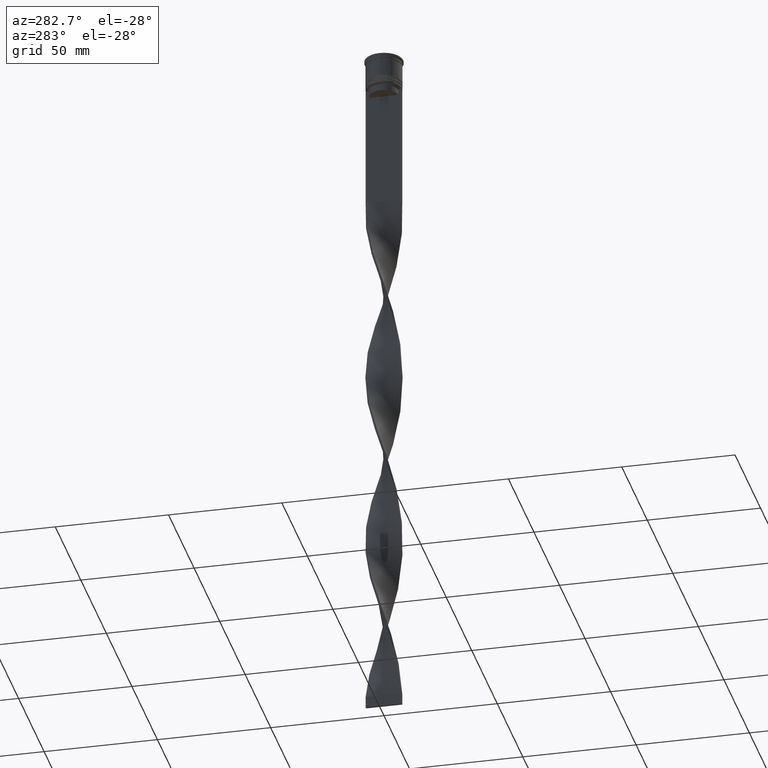
[diagram: clean part render]
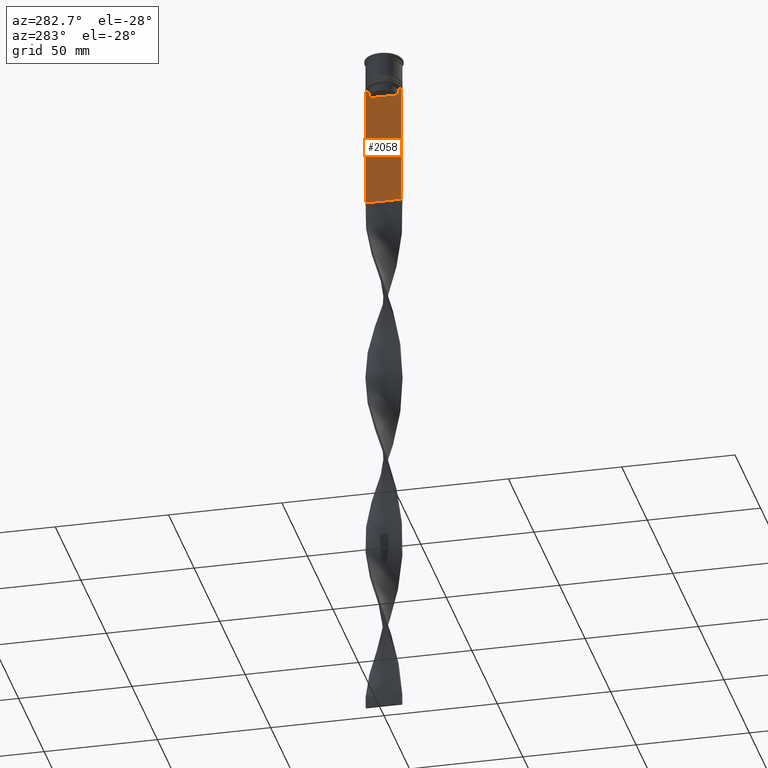
[diagram: same view with one face highlighted and labeled with its STEP entity id]
A machine part, auxiliary view. The second image highlights one B-rep face of the part: STEP entity #2058.
In plain terms, the highlighted planar face has unit normal (-1, 0, 0).
Its self-contained STEP definition (entity closure, byte-faithful):
#5 = VERTEX_POINT ( 'NONE', #3018 ) ;
#36 = VECTOR ( 'NONE', #982, 1000.000000000000000 ) ;
#104 = VECTOR ( 'NONE', #3948, 1000.000000000000000 ) ;
#203 = CARTESIAN_POINT ( 'NONE',  ( -0.4999999999999998890, -6.714736947305992132, -14.16668390685738999 ) ) ;
#284 = CARTESIAN_POINT ( 'NONE',  ( -0.4999999999999998890, 6.380438856379708312, 0.000000000000000000 ) ) ;
#470 = CARTESIAN_POINT ( 'NONE',  ( -0.4999999999999998890, -8.000000000000003553, 2.031219541881394530 ) ) ;
#481 = VERTEX_POINT ( 'NONE', #1497 ) ;
#530 = EDGE_CURVE ( 'NONE', #2687, #3258, #1315, .T. ) ;
#584 = EDGE_CURVE ( 'NONE', #3815, #2258, #1006, .T. ) ;
#670 = DIRECTION ( 'NONE',  ( 0.000000000000000000, 0.000000000000000000, -1.000000000000000000 ) ) ;
#787 = EDGE_CURVE ( 'NONE', #2905, #1333, #1852, .T. ) ;
#788 = FACE_OUTER_BOUND ( 'NONE', #1103, .T. ) ;
#791 = B_SPLINE_CURVE_WITH_KNOTS ( 'NONE', 3,
 ( #913, #2144, #203, #2166 ),
 .UNSPECIFIED., .F., .F.,
 ( 4, 4 ),
 ( 0.02996184199614749730, 0.03067452609193703841 ),
 .UNSPECIFIED. ) ;
#821 = CARTESIAN_POINT ( 'NONE',  ( -0.4999999999999998890, -6.881860213634098500, -14.00000000000000178 ) ) ;
#829 = DIRECTION ( 'NONE',  ( 0.000000000000000000, -1.000000000000000000, 0.000000000000000000 ) ) ;
#842 = CARTESIAN_POINT ( 'NONE',  ( -0.4999999999999998890, -6.380438856379708312, -14.50000000000000000 ) ) ;
#913 = CARTESIAN_POINT ( 'NONE',  ( -0.4999999999999998890, -6.380438856379708312, -14.50000000000000000 ) ) ;
#953 = VECTOR ( 'NONE', #670, 1000.000000000000000 ) ;
#956 = ORIENTED_EDGE ( 'NONE', *, *, #3692, .F. ) ;
#982 = DIRECTION ( 'NONE',  ( 0.000000000000000000, -1.000000000000000000, 0.000000000000000000 ) ) ;
#1006 = LINE ( 'NONE', #4086, #953 ) ;
#1042 = VECTOR ( 'NONE', #1313, 1000.000000000000000 ) ;
#1064 = LINE ( 'NONE', #3898, #1042 ) ;
#1068 = ORIENTED_EDGE ( 'NONE', *, *, #584, .F. ) ;
#1096 = CARTESIAN_POINT ( 'NONE',  ( -0.4999999999999998890, 7.884161337770806632, -14.00000000000000178 ) ) ;
#1103 = EDGE_LOOP ( 'NONE', ( #1550, #3534, #3837, #3394, #956, #1068, #2489, #2985, #2846, #1896, #4078, #2064 ) ) ;
#1115 = EDGE_CURVE ( 'NONE', #3258, #3061, #791, .T. ) ;
#1313 = DIRECTION ( 'NONE',  ( 0.000000000000000000, -1.000000000000000000, 0.000000000000000000 ) ) ;
#1315 = LINE ( 'NONE', #3173, #2016 ) ;
#1333 = VERTEX_POINT ( 'NONE', #1543 ) ;
#1400 = LINE ( 'NONE', #2685, #104 ) ;
#1497 = CARTESIAN_POINT ( 'NONE',  ( -0.4999999999999998890, 7.999999999999996447, -68.00000000000000000 ) ) ;
#1543 = CARTESIAN_POINT ( 'NONE',  ( -0.4999999999999998890, 6.380438856379708312, -14.50000000000000000 ) ) ;
#1550 = ORIENTED_EDGE ( 'NONE', *, *, #787, .F. ) ;
#1657 = CARTESIAN_POINT ( 'NONE',  ( -0.4999999999999998890, -8.000000000000003553, -14.00000000000000178 ) ) ;
#1683 = CARTESIAN_POINT ( 'NONE',  ( -0.4999999999999998890, 6.881860213634098500, -14.00000000000000178 ) ) ;
#1696 = EDGE_CURVE ( 'NONE', #3941, #481, #1959, .T. ) ;
#1698 = VECTOR ( 'NONE', #829, 1000.000000000000000 ) ;
#1737 = DIRECTION ( 'NONE',  ( -1.000000000000000000, 0.000000000000000000, 0.000000000000000000 ) ) ;
#1765 = VECTOR ( 'NONE', #1900, 1000.000000000000000 ) ;
#1852 = B_SPLINE_CURVE_WITH_KNOTS ( 'NONE', 3,
 ( #1683, #3296, #2385, #2920 ),
 .UNSPECIFIED., .F., .F.,
 ( 4, 4 ),
 ( 0.01172465562756038263, 0.01243276816391822651 ),
 .UNSPECIFIED. ) ;
#1856 = CARTESIAN_POINT ( 'NONE',  ( -0.4999999999999998890, 7.999999999999996447, -14.00000000000000178 ) ) ;
#1895 = AXIS2_PLACEMENT_3D ( 'NONE', #470, #1737, #2379 ) ;
#1896 = ORIENTED_EDGE ( 'NONE', *, *, #530, .F. ) ;
#1900 = DIRECTION ( 'NONE',  ( 0.000000000000000000, 1.000000000000000000, 0.000000000000000000 ) ) ;
#1959 = LINE ( 'NONE', #2276, #3425 ) ;
#2016 = VECTOR ( 'NONE', #2236, 1000.000000000000000 ) ;
#2058 = ADVANCED_FACE ( 'NONE', ( #788 ), #3683, .T. ) ;
#2064 = ORIENTED_EDGE ( 'NONE', *, *, #2493, .F. ) ;
#2086 = VERTEX_POINT ( 'NONE', #1096 ) ;
#2107 = EDGE_CURVE ( 'NONE', #2086, #2905, #1400, .T. ) ;
#2136 = CARTESIAN_POINT ( 'NONE',  ( -0.4999999999999998890, 6.399999999999999467, -17.00000000000000000 ) ) ;
#2144 = CARTESIAN_POINT ( 'NONE',  ( -0.4999999999999998890, -6.547597841511246131, -14.33335192438652328 ) ) ;
#2166 = CARTESIAN_POINT ( 'NONE',  ( -0.4999999999999998890, -6.881860213634098500, -14.00000000000000178 ) ) ;
#2191 = DIRECTION ( 'NONE',  ( 0.000000000000000000, 0.000000000000000000, -1.000000000000000000 ) ) ;
#2215 = LINE ( 'NONE', #3484, #1765 ) ;
#2224 = CARTESIAN_POINT ( 'NONE',  ( -0.4999999999999998890, -6.380438856379708312, -17.00000000000000000 ) ) ;
#2230 = VECTOR ( 'NONE', #2191, 1000.000000000000000 ) ;
#2236 = DIRECTION ( 'NONE',  ( -0.000000000000000000, -0.000000000000000000, 1.000000000000000000 ) ) ;
#2239 = EDGE_CURVE ( 'NONE', #3941, #2086, #3205, .T. ) ;
#2258 = VERTEX_POINT ( 'NONE', #2608 ) ;
#2276 = CARTESIAN_POINT ( 'NONE',  ( -0.4999999999999998890, 7.999999999999996447, 2.031219541881394530 ) ) ;
#2379 = DIRECTION ( 'NONE',  ( 0.000000000000000000, 0.000000000000000000, 1.000000000000000000 ) ) ;
#2385 = CARTESIAN_POINT ( 'NONE',  ( -0.4999999999999998890, 6.547597841304911626, -14.33335192459222718 ) ) ;
#2489 = ORIENTED_EDGE ( 'NONE', *, *, #3927, .F. ) ;
#2493 = EDGE_CURVE ( 'NONE', #1333, #5, #3120, .T. ) ;
#2608 = CARTESIAN_POINT ( 'NONE',  ( -0.4999999999999998890, -8.000000000000003553, -68.00000000000000000 ) ) ;
#2685 = CARTESIAN_POINT ( 'NONE',  ( -0.4999999999999998890, -8.000000000000003553, -14.00000000000000178 ) ) ;
#2687 = VERTEX_POINT ( 'NONE', #2224 ) ;
#2801 = DIRECTION ( 'NONE',  ( 0.000000000000000000, -1.000000000000000000, 0.000000000000000000 ) ) ;
#2846 = ORIENTED_EDGE ( 'NONE', *, *, #1115, .F. ) ;
#2905 = VERTEX_POINT ( 'NONE', #3908 ) ;
#2920 = CARTESIAN_POINT ( 'NONE',  ( -0.4999999999999998890, 6.380438856379708312, -14.50000000000000000 ) ) ;
#2985 = ORIENTED_EDGE ( 'NONE', *, *, #3911, .F. ) ;
#3018 = CARTESIAN_POINT ( 'NONE',  ( -0.4999999999999998890, 6.380438856379708312, -17.00000000000000000 ) ) ;
#3061 = VERTEX_POINT ( 'NONE', #821 ) ;
#3120 = LINE ( 'NONE', #284, #2230 ) ;
#3173 = CARTESIAN_POINT ( 'NONE',  ( -0.4999999999999998890, -6.380438856379708312, 0.000000000000000000 ) ) ;
#3205 = LINE ( 'NONE', #1657, #36 ) ;
#3258 = VERTEX_POINT ( 'NONE', #842 ) ;
#3296 = CARTESIAN_POINT ( 'NONE',  ( -0.4999999999999998890, 6.714736947114692711, -14.16668390704818847 ) ) ;
#3373 = VECTOR ( 'NONE', #2801, 1000.000000000000000 ) ;
#3394 = ORIENTED_EDGE ( 'NONE', *, *, #1696, .T. ) ;
#3404 = EDGE_CURVE ( 'NONE', #5, #2687, #3977, .T. ) ;
#3425 = VECTOR ( 'NONE', #3536, 1000.000000000000000 ) ;
#3484 = CARTESIAN_POINT ( 'NONE',  ( -0.4999999999999998890, -8.000000000000003553, -68.00000000000000000 ) ) ;
#3534 = ORIENTED_EDGE ( 'NONE', *, *, #2107, .F. ) ;
#3536 = DIRECTION ( 'NONE',  ( 0.000000000000000000, 0.000000000000000000, -1.000000000000000000 ) ) ;
#3600 = LINE ( 'NONE', #3684, #1698 ) ;
#3669 = VERTEX_POINT ( 'NONE', #4083 ) ;
#3683 = PLANE ( 'NONE',  #1895 ) ;
#3684 = CARTESIAN_POINT ( 'NONE',  ( -0.4999999999999998890, -8.000000000000003553, -14.00000000000000178 ) ) ;
#3692 = EDGE_CURVE ( 'NONE', #2258, #481, #2215, .T. ) ;
#3815 = VERTEX_POINT ( 'NONE', #3990 ) ;
#3837 = ORIENTED_EDGE ( 'NONE', *, *, #2239, .F. ) ;
#3898 = CARTESIAN_POINT ( 'NONE',  ( -0.4999999999999998890, -8.000000000000003553, -14.00000000000000178 ) ) ;
#3908 = CARTESIAN_POINT ( 'NONE',  ( -0.4999999999999998890, 6.881860213634098500, -14.00000000000000178 ) ) ;
#3911 = EDGE_CURVE ( 'NONE', #3061, #3669, #1064, .T. ) ;
#3927 = EDGE_CURVE ( 'NONE', #3669, #3815, #3600, .T. ) ;
#3941 = VERTEX_POINT ( 'NONE', #1856 ) ;
#3948 = DIRECTION ( 'NONE',  ( 0.000000000000000000, -1.000000000000000000, 0.000000000000000000 ) ) ;
#3977 = LINE ( 'NONE', #2136, #3373 ) ;
#3990 = CARTESIAN_POINT ( 'NONE',  ( -0.4999999999999998890, -8.000000000000003553, -14.00000000000000178 ) ) ;
#4078 = ORIENTED_EDGE ( 'NONE', *, *, #3404, .F. ) ;
#4083 = CARTESIAN_POINT ( 'NONE',  ( -0.4999999999999998890, -7.884161337770806632, -14.00000000000000178 ) ) ;
#4086 = CARTESIAN_POINT ( 'NONE',  ( -0.4999999999999998890, -8.000000000000003553, 2.031219541881394530 ) ) ;